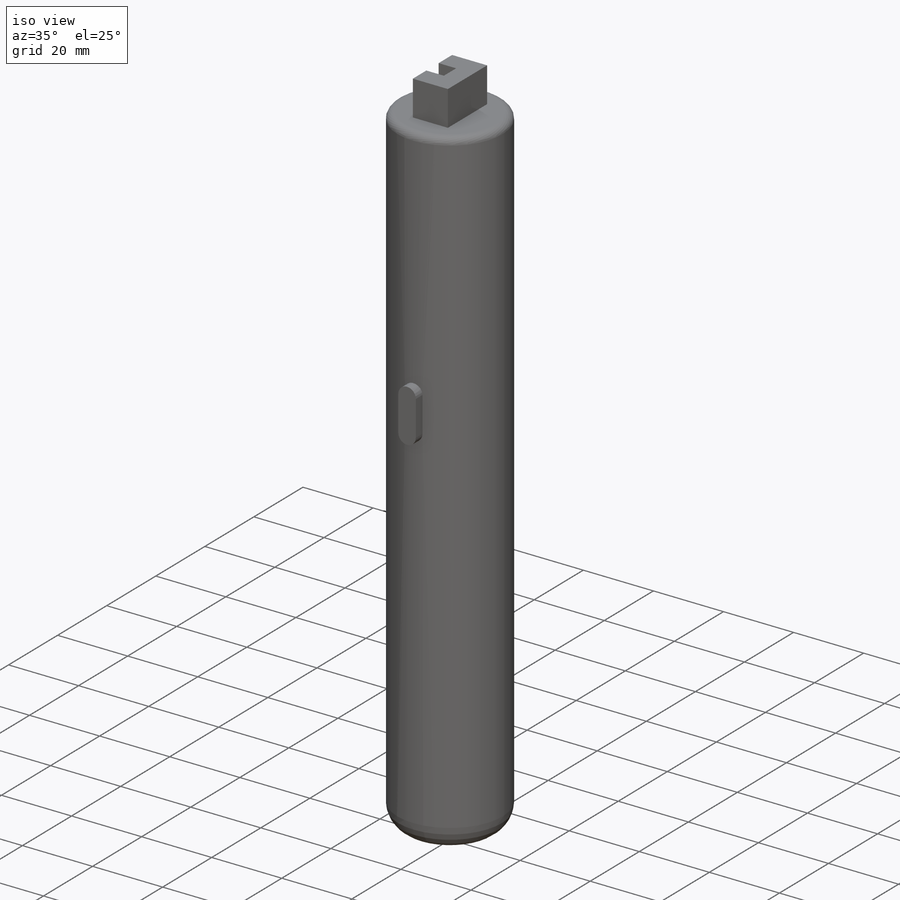
[diagram: iso view]
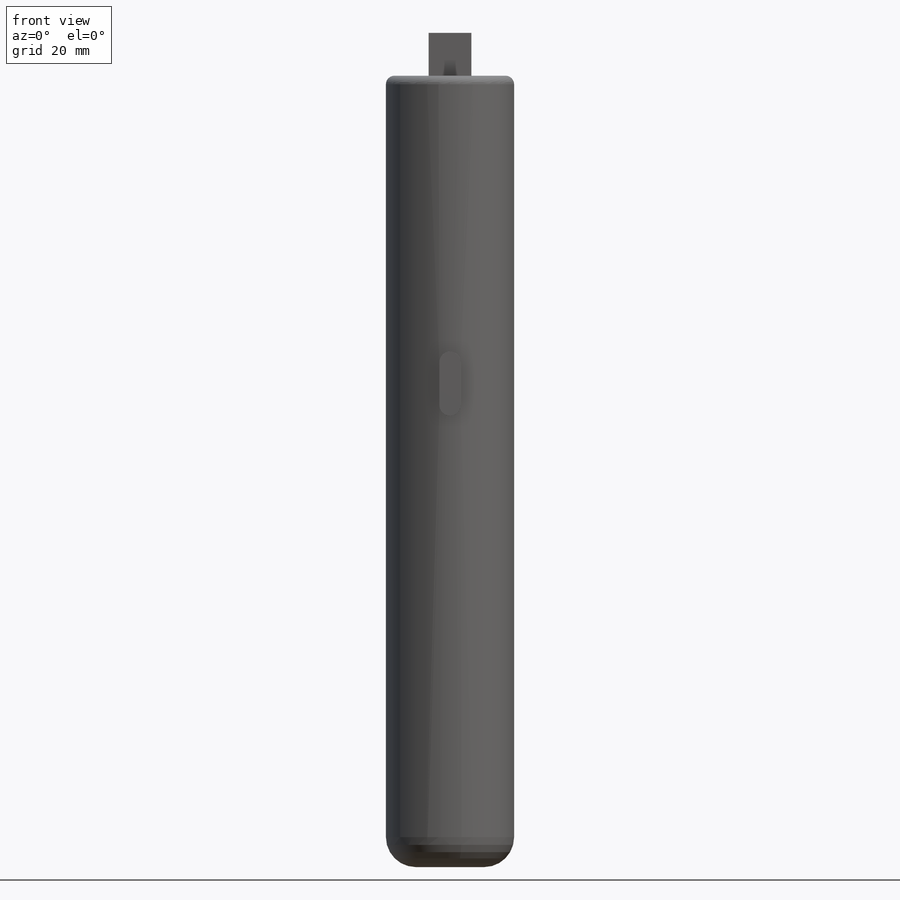
[diagram: front view]
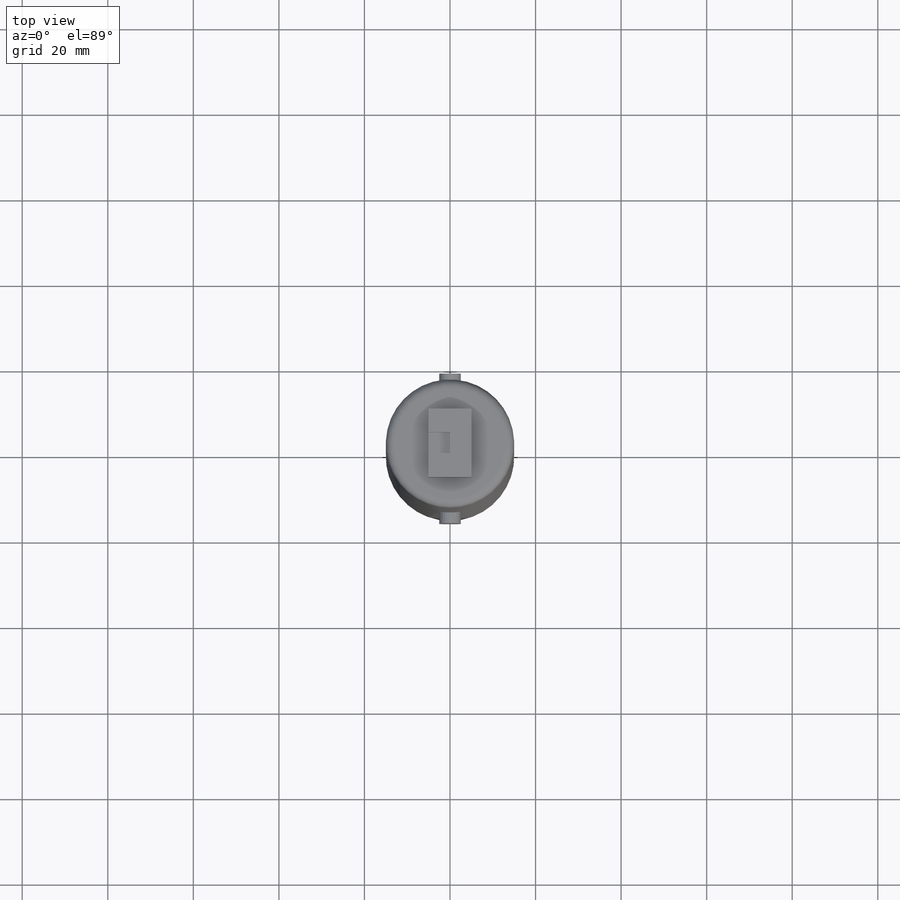
[diagram: top view]
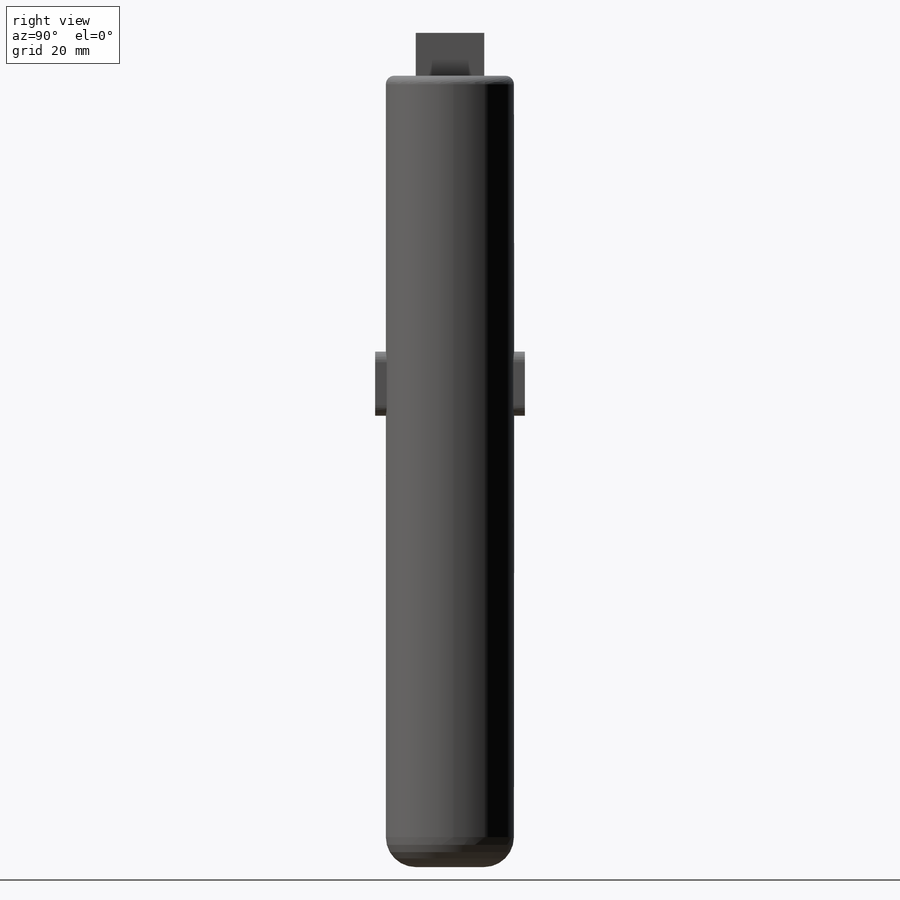
[diagram: right view]
SOLIDWORKS PART (.sldprt)
format: sldprt  version: not decoded by parser v0  size: 234,496 bytes
history: native  units: mm
features: sketch x6, extrude x3, plane x3, fillet x2, cut_extrude x2, material x1 (+13 scaffold rows collapsed)
feature tree (30):
  scaffold x13  (default folders/planes/origin — collapsed)
  material  "Material <sin especificar>"
  sketch  "Sketch1"  dims[D1=~17.148156mm]
  extrude  "Boss-Extrude1"  Depth=185mm
  fillet  "Fillet2"  Radius=7mm
  fillet  "Fillet3"  Radius=2mm
  sketch  "Sketch2"  dims[D1=~5.733627mm]
  cut_extrude  "Cut-Extrude1"  Depth=180mm
  plane  "Plane1"  Offset=15mm
  plane  "Plane2"  Offset=30mm
  sketch  "Sketch7"  dims[D1=70.0mm]
  extrude  "Boss-Extrude3"  Depth=2.5mm
  sketch  "Sketch8"  dims[D1=5.0mm]
  extrude  "Boss-Extrude4"  Depth=5mm
  plane  "Plane3"  Offset=0mm
  sketch  "Sketch9"  dims[D1=3.0mm]
  sketch  "Sketch10"
  cut_extrude  "Cut-Extrude3"  Depth=3mm
decode coverage: 12 of 13 modeling features carry decoded parameters
note: ~ marks probable driven/reference dimensions
note: suppression state not decoded; provenance and decode notes live in map.json
